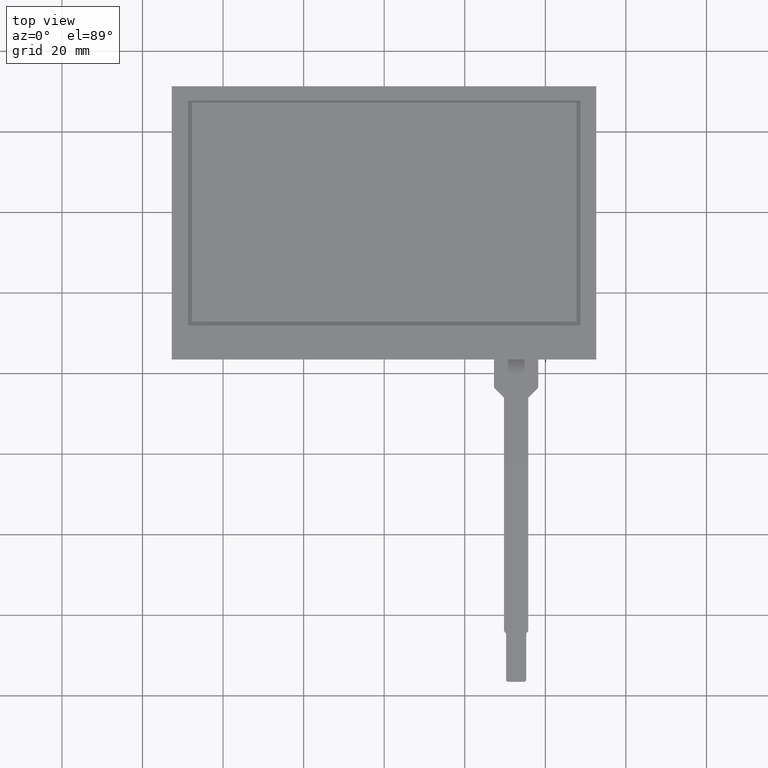
[diagram: clean part render]
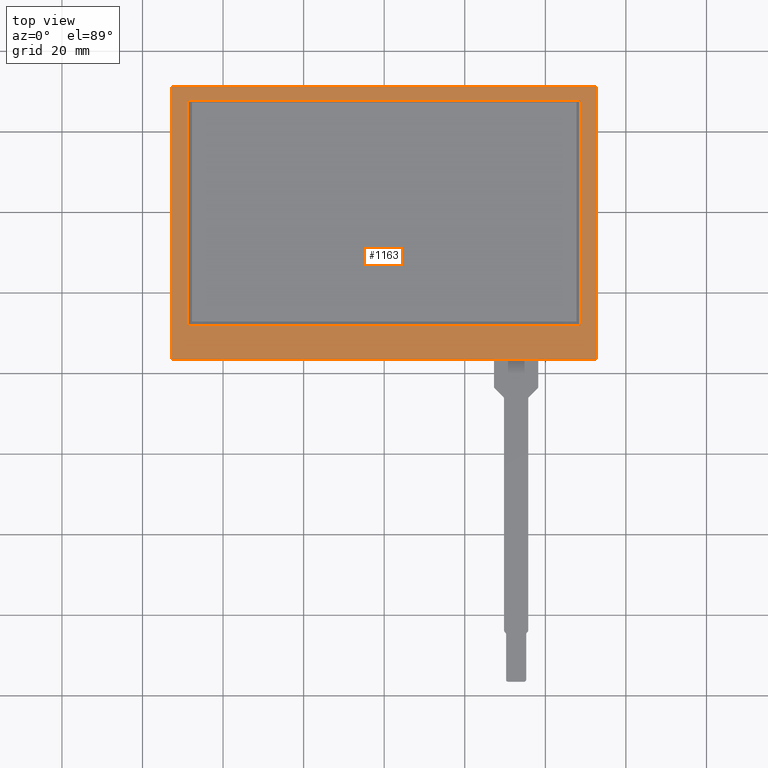
[diagram: same view with one face highlighted and labeled with its STEP entity id]
A machine part, top view. The second image highlights one B-rep face of the part: STEP entity #1163.
In plain terms, the highlighted planar face has unit normal (0, 0, 1).
Its self-contained STEP definition (entity closure, byte-faithful):
#39=FACE_BOUND('',#199,.T.);
#79=PLANE('',#1270);
#138=FACE_OUTER_BOUND('',#198,.T.);
#198=EDGE_LOOP('',(#1061,#1062,#1063,#1064));
#199=EDGE_LOOP('',(#1065,#1066,#1067,#1068));
#317=LINE('',#1868,#451);
#321=LINE('',#1876,#455);
#324=LINE('',#1882,#458);
#327=LINE('',#1887,#461);
#329=LINE('',#1893,#463);
#330=LINE('',#1895,#464);
#331=LINE('',#1897,#465);
#332=LINE('',#1898,#466);
#451=VECTOR('',#1541,10.);
#455=VECTOR('',#1547,10.);
#458=VECTOR('',#1552,10.);
#461=VECTOR('',#1557,10.);
#463=VECTOR('',#1563,10.);
#464=VECTOR('',#1564,10.);
#465=VECTOR('',#1565,10.);
#466=VECTOR('',#1566,10.);
#595=VERTEX_POINT('',#1866);
#596=VERTEX_POINT('',#1867);
#599=VERTEX_POINT('',#1875);
#601=VERTEX_POINT('',#1881);
#603=VERTEX_POINT('',#1891);
#604=VERTEX_POINT('',#1892);
#605=VERTEX_POINT('',#1894);
#606=VERTEX_POINT('',#1896);
#749=EDGE_CURVE('',#595,#596,#317,.T.);
#753=EDGE_CURVE('',#599,#595,#321,.T.);
#756=EDGE_CURVE('',#601,#599,#324,.T.);
#759=EDGE_CURVE('',#596,#601,#327,.T.);
#761=EDGE_CURVE('',#603,#604,#329,.T.);
#762=EDGE_CURVE('',#604,#605,#330,.T.);
#763=EDGE_CURVE('',#605,#606,#331,.T.);
#764=EDGE_CURVE('',#606,#603,#332,.T.);
#1061=ORIENTED_EDGE('',*,*,#761,.T.);
#1062=ORIENTED_EDGE('',*,*,#762,.T.);
#1063=ORIENTED_EDGE('',*,*,#763,.T.);
#1064=ORIENTED_EDGE('',*,*,#764,.T.);
#1065=ORIENTED_EDGE('',*,*,#749,.T.);
#1066=ORIENTED_EDGE('',*,*,#759,.T.);
#1067=ORIENTED_EDGE('',*,*,#756,.T.);
#1068=ORIENTED_EDGE('',*,*,#753,.T.);
#1163=ADVANCED_FACE('',(#138,#39),#79,.T.);
#1270=AXIS2_PLACEMENT_3D('',#1890,#1561,#1562);
#1541=DIRECTION('',(-1.59000791210191E-16,1.,0.));
#1547=DIRECTION('',(-1.,-1.36586798190505E-16,0.));
#1552=DIRECTION('',(-1.59000791210191E-16,-1.,0.));
#1557=DIRECTION('',(1.,0.,0.));
#1561=DIRECTION('center_axis',(0.,0.,1.));
#1562=DIRECTION('ref_axis',(1.,0.,0.));
#1563=DIRECTION('',(-1.,0.,0.));
#1564=DIRECTION('',(0.,-1.,0.));
#1565=DIRECTION('',(1.,8.42674022485887E-17,0.));
#1566=DIRECTION('',(0.,1.,0.));
#1866=CARTESIAN_POINT('',(-48.77,-28.18,0.));
#1867=CARTESIAN_POINT('',(-48.77,27.68,0.));
#1868=CARTESIAN_POINT('',(-48.77,-15.4075,0.));
#1875=CARTESIAN_POINT('',(48.77,-28.18,0.));
#1876=CARTESIAN_POINT('',(24.36,-28.18,0.));
#1881=CARTESIAN_POINT('',(48.77,27.68,0.));
#1882=CARTESIAN_POINT('',(48.77,12.5225,0.));
#1887=CARTESIAN_POINT('',(-24.41,27.68,0.));
#1890=CARTESIAN_POINT('Origin',(-0.0499999999999989,-2.63500000000001,0.));
#1891=CARTESIAN_POINT('',(52.65,31.28,0.));
#1892=CARTESIAN_POINT('',(-52.75,31.28,0.));
#1893=CARTESIAN_POINT('',(52.65,31.28,0.));
#1894=CARTESIAN_POINT('',(-52.75,-36.55,0.));
#1895=CARTESIAN_POINT('',(-52.75,31.28,0.));
#1896=CARTESIAN_POINT('',(52.65,-36.55,0.));
#1897=CARTESIAN_POINT('',(-52.75,-36.55,0.));
#1898=CARTESIAN_POINT('',(52.65,-36.55,0.));